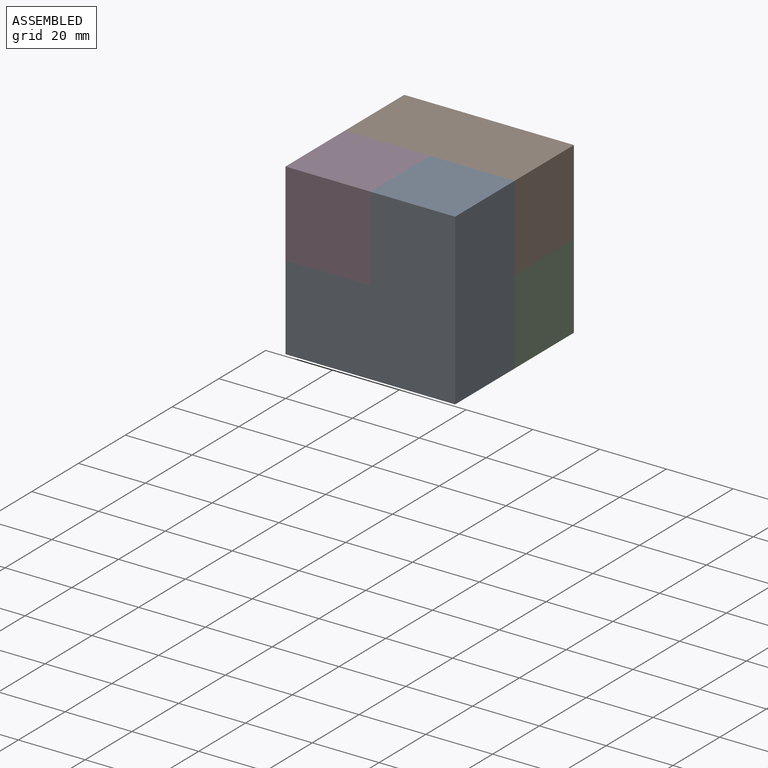
[diagram: assembled view]
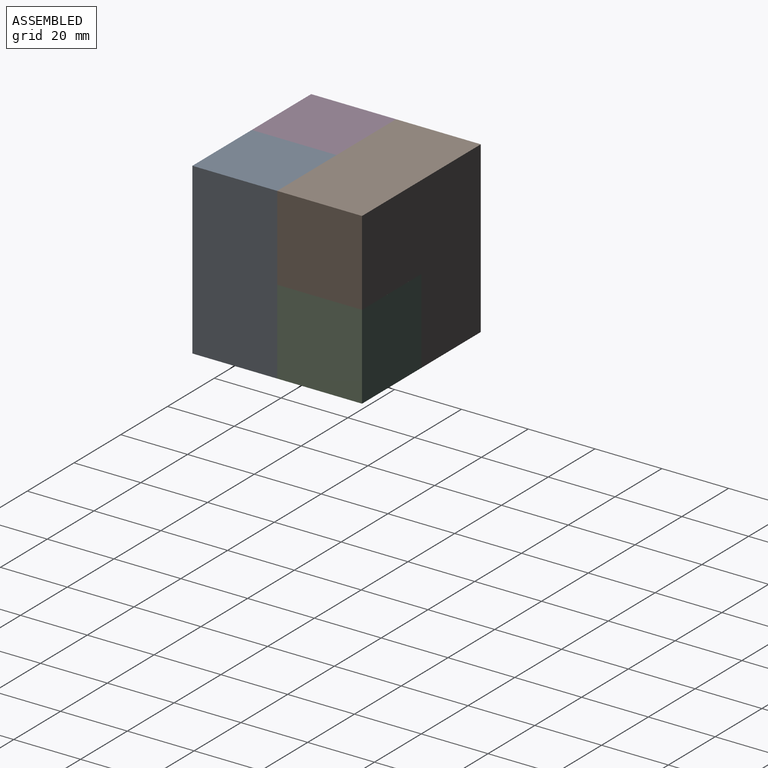
[diagram: assembled view, second angle]
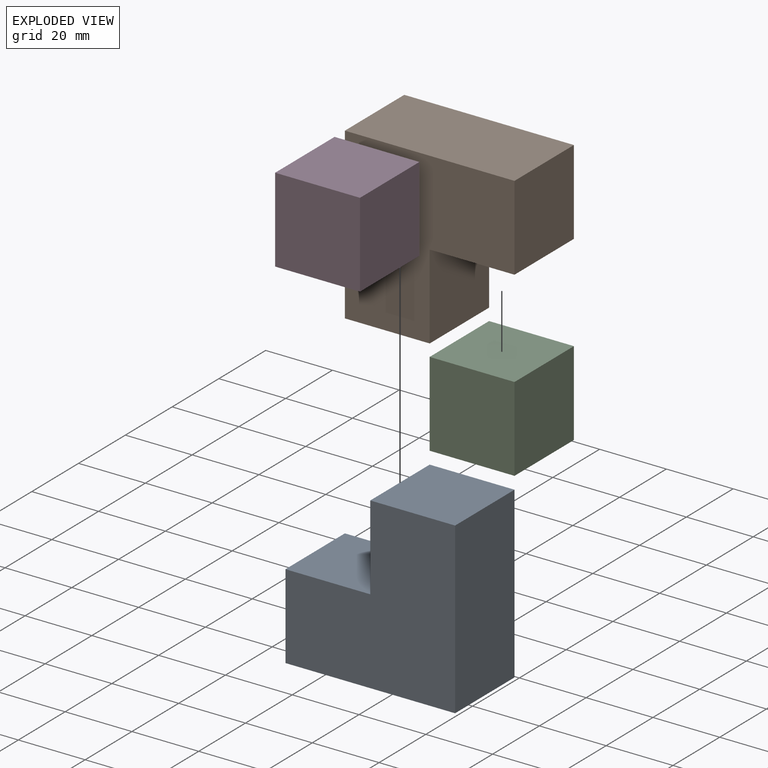
[diagram: exploded view]
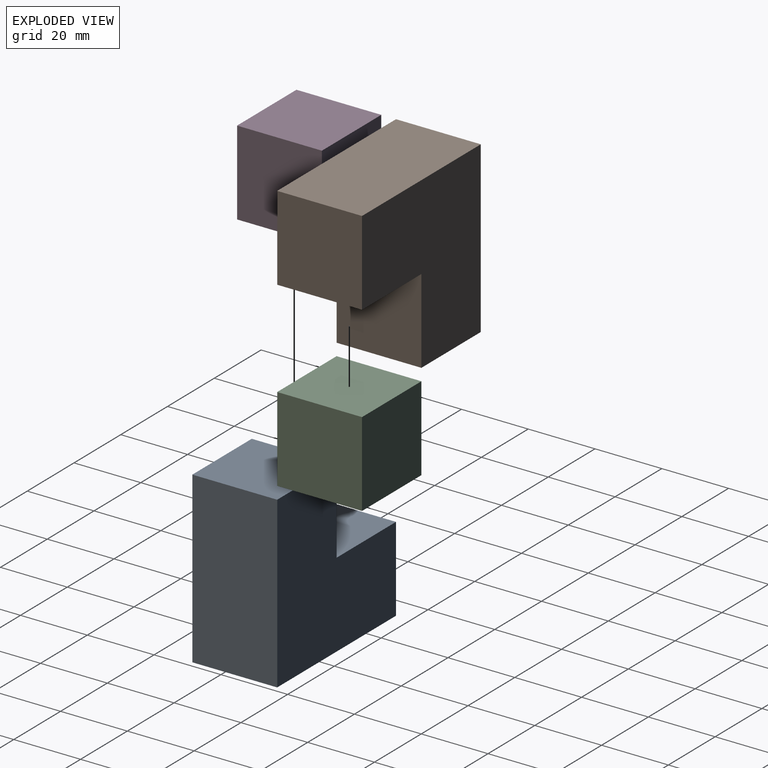
[diagram: exploded view, second angle]
ASSEMBLY  parts=4 mates=3
PART A: 8 faces, bbox 50.8x25.4x50.8 mm
  f0: plane 25.4x25.4mm, normal (1,0,0), area 645.2mm2, adj f1,f5,f6,f7
  f1: plane 25.4x25.4mm, normal (0,0,1), area 645.2mm2, adj f0,f2,f6,f7
  f2: plane 50.8x25.4mm, normal (-1,0,0), area 1290.3mm2, adj f1,f3,f6,f7
  f3: plane 50.8x25.4mm, normal (0,0,-1), area 1290.3mm2, adj f2,f4,f6,f7
  f4: plane 25.4x25.4mm, normal (1,0,0), area 645.2mm2, adj f3,f5,f6,f7
  f5: plane 25.4x25.4mm, normal (0,0,1), area 645.2mm2, adj f0,f4,f6,f7
  f6: plane 50.8x50.8mm, normal (0,-1,0), area 1935.5mm2, adj f0,f1,f2,f3,f4,f5
  f7: plane 50.8x50.8mm, normal (0,1,0), area 1935.5mm2, adj f0,f1,f2,f3,f4,f5
PART B: 8 faces, bbox 50.8x25.4x50.8 mm
  f0: plane 25.4x25.4mm, normal (1,0,0), area 645.2mm2, adj f1,f5,f6,f7
  f1: plane 25.4x25.4mm, normal (0,0,1), area 645.2mm2, adj f0,f2,f6,f7
  f2: plane 50.8x25.4mm, normal (-1,0,0), area 1290.3mm2, adj f1,f3,f6,f7
  f3: plane 50.8x25.4mm, normal (0,0,-1), area 1290.3mm2, adj f2,f4,f6,f7
  f4: plane 25.4x25.4mm, normal (1,0,0), area 645.2mm2, adj f3,f5,f6,f7
  f5: plane 25.4x25.4mm, normal (0,0,1), area 645.2mm2, adj f0,f4,f6,f7
  f6: plane 50.8x50.8mm, normal (0,-1,0), area 1935.5mm2, adj f0,f1,f2,f3,f4,f5
  f7: plane 50.8x50.8mm, normal (0,1,0), area 1935.5mm2, adj f0,f1,f2,f3,f4,f5
PART C: 6 faces, bbox 25.4x25.4x25.4 mm
  f0: plane 25.4x25.4mm, normal (0,0,1), area 645.2mm2, adj f1,f3,f4,f5
  f1: plane 25.4x25.4mm, normal (-1,0,0), area 645.2mm2, adj f0,f2,f4,f5
  f2: plane 25.4x25.4mm, normal (0,0,-1), area 645.2mm2, adj f1,f3,f4,f5
  f3: plane 25.4x25.4mm, normal (1,0,0), area 645.2mm2, adj f0,f2,f4,f5
  f4: plane 25.4x25.4mm, normal (0,-1,0), area 645.2mm2, adj f0,f1,f2,f3
  f5: plane 25.4x25.4mm, normal (0,1,0), area 645.2mm2, adj f0,f1,f2,f3
PART D: 6 faces, bbox 25.4x25.4x25.4 mm
  f0: plane 25.4x25.4mm, normal (-1,0,0), area 645.2mm2, adj f1,f3,f4,f5
  f1: plane 25.4x25.4mm, normal (0,0,-1), area 645.2mm2, adj f0,f2,f4,f5
  f2: plane 25.4x25.4mm, normal (1,0,0), area 645.2mm2, adj f1,f3,f4,f5
  f3: plane 25.4x25.4mm, normal (0,0,1), area 645.2mm2, adj f0,f2,f4,f5
  f4: plane 25.4x25.4mm, normal (0,-1,0), area 645.2mm2, adj f0,f1,f2,f3
  f5: plane 25.4x25.4mm, normal (0,1,0), area 645.2mm2, adj f0,f1,f2,f3
PLACE A rot(axis=(0,0,1),180deg) t=(29.16,-48.17,-7.06)mm
PLACE B rot(axis=(1,0,0),180deg) t=(-23.33,-22.77,23.38)mm
PLACE C t=(-12.2,2.63,-4.54)mm fixed
PLACE D rot(axis=(-0.58,-0.58,0.58),120deg) t=(-37.6,-35.47,85.63)mm
MATE fastened D.f2 <-> B.f7  axis (0,1,0) through (-50.3,-22.77,33.56)mm
MATE fastened B.f5 <-> C.f0  axis (0,0,-1) through (-12.2,-10.07,8.16)mm
MATE fastened A.f5 <-> D.f5  axis (0,0,1) through (-37.6,-35.47,8.16)mm
